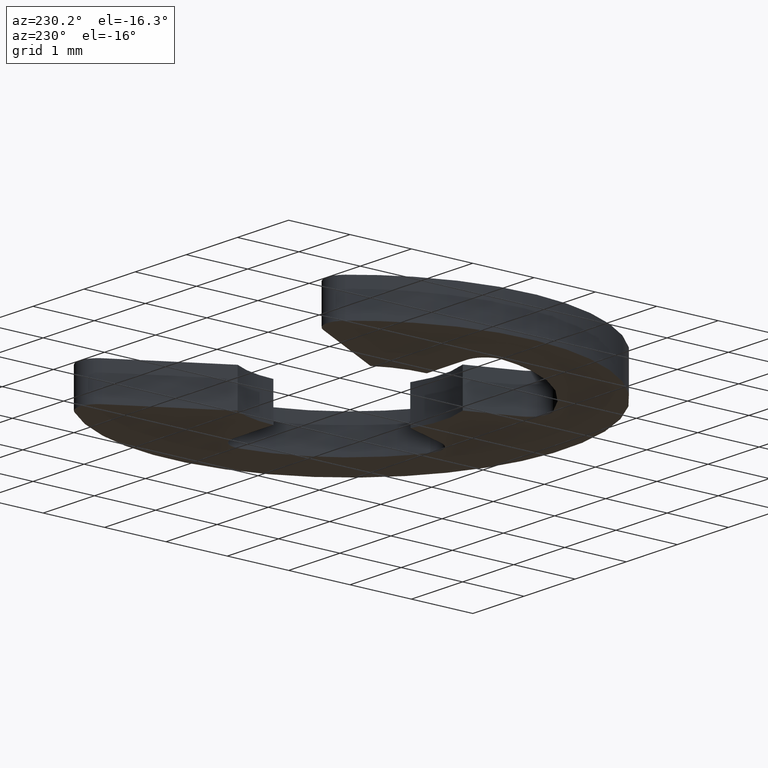
[diagram: clean part render]
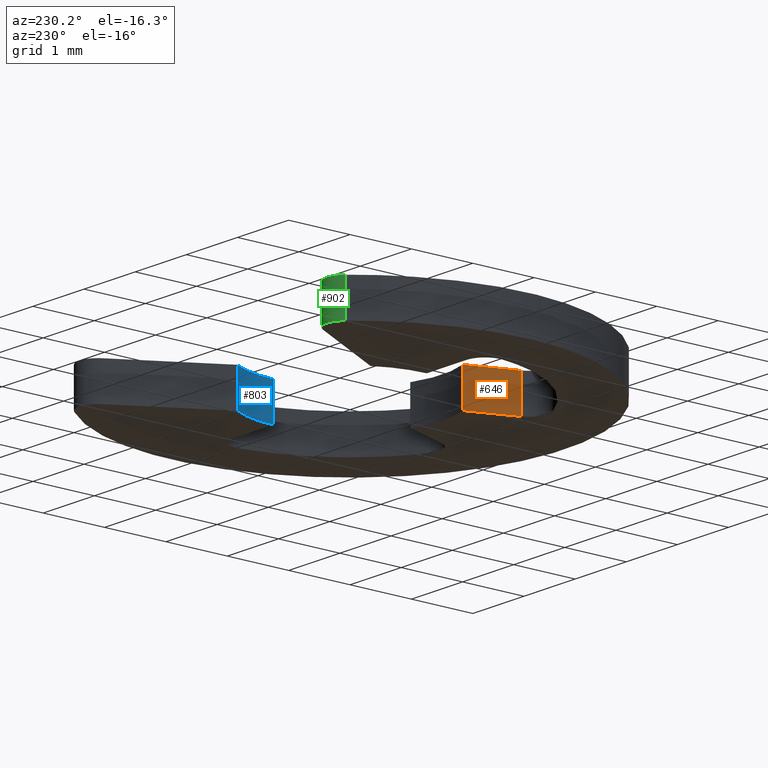
[diagram: same view with three faces highlighted in distinct colors, each labeled with its STEP entity id]
A machine part, auxiliary view with three faces highlighted in distinct colors.
Their STEP definitions:

[orange] entity #646 — the highlighted face is a freeform B-spline surface patch.
#105=CARTESIAN_POINT('',(-0.779926000000000,-2.142830000000105,0.0));
#106=VERTEX_POINT('',#105);
#122=CARTESIAN_POINT('',(-0.513031518846331,-1.409538456612740,0.0));
#123=VERTEX_POINT('',#122);
#124=CARTESIAN_POINT('',(-0.513031518846331,-1.409538456612740,0.0));
#125=CARTESIAN_POINT('',(-0.779926000000000,-2.142830000000105,0.0));
#126=QUASI_UNIFORM_CURVE('',1,(#124,#125),.UNSPECIFIED.,.F.,.U.);
#127=EDGE_CURVE('',#123,#106,#126,.T.);
#457=CARTESIAN_POINT('',(-0.513031518846331,-1.409538456612740,0.599990999999855));
#458=VERTEX_POINT('',#457);
#472=CARTESIAN_POINT('',(-0.779926000000000,-2.142830000000105,0.599990999999855));
#473=VERTEX_POINT('',#472);
#474=CARTESIAN_POINT('',(-0.513031518846331,-1.409538456612740,0.599990999999855));
#475=CARTESIAN_POINT('',(-0.779926000000000,-2.142830000000105,0.599990999999855));
#476=QUASI_UNIFORM_CURVE('',1,(#474,#475),.UNSPECIFIED.,.F.,.U.);
#477=EDGE_CURVE('',#458,#473,#476,.T.);
#623=CARTESIAN_POINT('',(-0.779926000000000,-2.142830000000105,0.599990999999855));
#624=CARTESIAN_POINT('',(-0.779926000000000,-2.142830000000105,0.0));
#625=QUASI_UNIFORM_CURVE('',1,(#623,#624),.UNSPECIFIED.,.F.,.U.);
#626=EDGE_CURVE('',#473,#106,#625,.T.);
#631=CARTESIAN_POINT('',(-0.793257374394974,-2.179457800676265,-0.029969549287094));
#632=CARTESIAN_POINT('',(-0.499699490181284,-1.372910827248603,-0.029969549287094));
#633=CARTESIAN_POINT('',(-0.793257374394974,-2.179457800676265,0.629960565379962));
#634=CARTESIAN_POINT('',(-0.499699490181284,-1.372910827248603,0.629960565379962));
#635=B_SPLINE_SURFACE_WITH_KNOTS('',1,1,((#631,#633),(#632,#634)),.UNSPECIFIED.,.F.,.F.,.U.,(2,2),(2,2),(0.041708447444066,0.958291619611159),(0.041708334948495,0.958291687403247),.UNSPECIFIED.);
#636=ORIENTED_EDGE('',*,*,#127,.T.);
#637=ORIENTED_EDGE('',*,*,#626,.F.);
#638=ORIENTED_EDGE('',*,*,#477,.F.);
#639=CARTESIAN_POINT('',(-0.513031518846331,-1.409538456612740,0.599990999999855));
#640=CARTESIAN_POINT('',(-0.513031518846331,-1.409538456612740,0.0));
#641=QUASI_UNIFORM_CURVE('',1,(#639,#640),.UNSPECIFIED.,.F.,.U.);
#642=EDGE_CURVE('',#458,#123,#641,.T.);
#643=ORIENTED_EDGE('',*,*,#642,.T.);
#644=EDGE_LOOP('',(#636,#637,#638,#643));
#645=FACE_OUTER_BOUND('',#644,.T.);
#646=ADVANCED_FACE('',(#645),#635,.F.);

[blue] entity #803 — the highlighted face is a freeform B-spline surface patch.
#200=CARTESIAN_POINT('',(1.500000000000000,3.673819E-016,0.0));
#201=VERTEX_POINT('',#200);
#207=CARTESIAN_POINT('',(1.299999000000000,0.748328999999899,0.0));
#208=VERTEX_POINT('',#207);
#209=CARTESIAN_POINT('',(1.299999000000000,0.748328999999899,0.0));
#210=CARTESIAN_POINT('',(1.499999088878164,0.400890455451811,0.0));
#211=CARTESIAN_POINT('',(1.500000000000000,3.673819E-016,0.0));
#219=(BOUNDED_CURVE()B_SPLINE_CURVE(2,(#209,#210,#211),.UNSPECIFIED.,.F.,.U.)CURVE()GEOMETRIC_REPRESENTATION_ITEM()QUASI_UNIFORM_CURVE()RATIONAL_B_SPLINE_CURVE((1.0,0.966091924929796,1.0))REPRESENTATION_ITEM(''));
#220=EDGE_CURVE('',#208,#201,#219,.T.);
#372=CARTESIAN_POINT('',(1.299999000000000,0.748328999999899,0.599990999999855));
#373=VERTEX_POINT('',#372);
#379=CARTESIAN_POINT('',(1.500000000000000,3.673819E-016,0.599990999999855));
#380=VERTEX_POINT('',#379);
#381=CARTESIAN_POINT('',(1.299999000000000,0.748328999999899,0.599990999999855));
#382=CARTESIAN_POINT('',(1.499999088878164,0.400890455451811,0.599990999999855));
#383=CARTESIAN_POINT('',(1.500000000000000,3.673819E-016,0.599990999999855));
#391=(BOUNDED_CURVE()B_SPLINE_CURVE(2,(#381,#382,#383),.UNSPECIFIED.,.F.,.U.)CURVE()GEOMETRIC_REPRESENTATION_ITEM()QUASI_UNIFORM_CURVE()RATIONAL_B_SPLINE_CURVE((1.0,0.966091924929796,1.0))REPRESENTATION_ITEM(''));
#392=EDGE_CURVE('',#373,#380,#391,.T.);
#771=CARTESIAN_POINT('',(1.500000000000000,3.673819E-016,0.599990999999855));
#772=CARTESIAN_POINT('',(1.500000000000000,3.673819E-016,0.0));
#773=QUASI_UNIFORM_CURVE('',1,(#771,#772),.UNSPECIFIED.,.F.,.U.);
#774=EDGE_CURVE('',#380,#201,#773,.T.);
#779=CARTESIAN_POINT('',(1.499506252933441,-0.038483729204833,0.614990774999852));
#780=CARTESIAN_POINT('',(1.499506252933441,-0.038483729204833,-0.015374769374996));
#781=CARTESIAN_POINT('',(1.510860737100011,0.403940130395196,0.614990774999851));
#782=CARTESIAN_POINT('',(1.510860737100011,0.403940130395196,-0.015374769374996));
#783=CARTESIAN_POINT('',(1.280232426513843,0.781668045977624,0.614990774999852));
#784=CARTESIAN_POINT('',(1.280232426513843,0.781668045977624,-0.015374769374996));
#792=(BOUNDED_SURFACE()B_SPLINE_SURFACE(1,2,((#779,#781,#783),(#780,#782,#784)),.UNSPECIFIED.,.F.,.F.,.U.)B_SPLINE_SURFACE_WITH_KNOTS((2,2),(3,3),(0.0,1.0),(0.002922328978404,0.915064131051675),.UNSPECIFIED.)GEOMETRIC_REPRESENTATION_ITEM()RATIONAL_B_SPLINE_SURFACE(((0.999714778033884,0.955332305995588,0.992392051915457),(0.999714778033884,0.955332305995588,0.992392051915457)))REPRESENTATION_ITEM('')SURFACE());
#793=ORIENTED_EDGE('',*,*,#220,.T.);
#794=ORIENTED_EDGE('',*,*,#774,.F.);
#795=ORIENTED_EDGE('',*,*,#392,.F.);
#796=CARTESIAN_POINT('',(1.299999000000000,0.748328999999899,0.599990999999855));
#797=CARTESIAN_POINT('',(1.299999000000000,0.748328999999899,0.0));
#798=QUASI_UNIFORM_CURVE('',1,(#796,#797),.UNSPECIFIED.,.F.,.U.);
#799=EDGE_CURVE('',#373,#208,#798,.T.);
#800=ORIENTED_EDGE('',*,*,#799,.T.);
#801=EDGE_LOOP('',(#793,#794,#795,#800));
#802=FACE_OUTER_BOUND('',#801,.T.);
#803=ADVANCED_FACE('',(#802),#792,.F.);

[green] entity #902 — the highlighted face is a freeform B-spline surface patch.
#246=CARTESIAN_POINT('',(-2.648951083941810,2.287587846375195,0.0));
#247=VERTEX_POINT('',#246);
#265=CARTESIAN_POINT('',(-2.162090000000000,2.241507999999895,0.0));
#266=VERTEX_POINT('',#265);
#267=CARTESIAN_POINT('',(-2.648951083941811,2.287587846375196,0.0));
#268=CARTESIAN_POINT('',(-2.547761402684595,2.404762151298508,0.0));
#269=CARTESIAN_POINT('',(-2.393630421255934,2.390174146258859,0.0));
#270=CARTESIAN_POINT('',(-2.239499439827274,2.375586141219209,0.0));
#271=CARTESIAN_POINT('',(-2.162090000000000,2.241507999999895,0.0));
#279=(BOUNDED_CURVE()B_SPLINE_CURVE(2,(#267,#268,#269,#270,#271),.UNSPECIFIED.,.F.,.U.)B_SPLINE_CURVE_WITH_KNOTS((3,2,3),(0.0,0.500000000000000,1.0),.UNSPECIFIED.)CURVE()GEOMETRIC_REPRESENTATION_ITEM()RATIONAL_B_SPLINE_CURVE((1.0,0.888643489135460,1.0,0.888643489135460,1.0))REPRESENTATION_ITEM(''));
#280=EDGE_CURVE('',#247,#266,#279,.T.);
#312=CARTESIAN_POINT('',(-2.162090000000000,2.241507999999895,0.599990999999855));
#313=VERTEX_POINT('',#312);
#319=CARTESIAN_POINT('',(-2.648951083941810,2.287587846375195,0.599990999999855));
#320=VERTEX_POINT('',#319);
#321=CARTESIAN_POINT('',(-2.648951083941811,2.287587846375196,0.599990999999855));
#322=CARTESIAN_POINT('',(-2.547761402684595,2.404762151298508,0.599990999999855));
#323=CARTESIAN_POINT('',(-2.393630421255934,2.390174146258859,0.599990999999855));
#324=CARTESIAN_POINT('',(-2.239499439827274,2.375586141219209,0.599990999999855));
#325=CARTESIAN_POINT('',(-2.162090000000000,2.241507999999895,0.599990999999855));
#333=(BOUNDED_CURVE()B_SPLINE_CURVE(2,(#321,#322,#323,#324,#325),.UNSPECIFIED.,.F.,.U.)B_SPLINE_CURVE_WITH_KNOTS((3,2,3),(0.0,0.500000000000000,1.0),.UNSPECIFIED.)CURVE()GEOMETRIC_REPRESENTATION_ITEM()RATIONAL_B_SPLINE_CURVE((1.0,0.888643489135460,1.0,0.888643489135460,1.0))REPRESENTATION_ITEM(''));
#334=EDGE_CURVE('',#320,#313,#333,.T.);
#870=CARTESIAN_POINT('',(-2.648951083941810,2.287587846375195,0.599990999999855));
#871=CARTESIAN_POINT('',(-2.648951083941810,2.287587846375195,0.0));
#872=QUASI_UNIFORM_CURVE('',1,(#870,#871),.UNSPECIFIED.,.F.,.U.);
#873=EDGE_CURVE('',#320,#247,#872,.T.);
#878=CARTESIAN_POINT('',(-2.158252510762985,2.234655614958462,0.614990774999852));
#879=CARTESIAN_POINT('',(-2.158252510762985,2.234655614958462,-0.015374769374996));
#880=CARTESIAN_POINT('',(-2.378679140114794,2.640634272874285,0.614990774999851));
#881=CARTESIAN_POINT('',(-2.378679140114794,2.640634272874285,-0.015374769374996));
#882=CARTESIAN_POINT('',(-2.659903511686564,2.274138130405371,0.614990774999852));
#883=CARTESIAN_POINT('',(-2.659903511686564,2.274138130405371,-0.015374769374996));
#891=(BOUNDED_SURFACE()B_SPLINE_SURFACE(1,2,((#878,#880,#882),(#879,#881,#883)),.UNSPECIFIED.,.F.,.F.,.U.)GEOMETRIC_REPRESENTATION_ITEM()QUASI_UNIFORM_SURFACE()RATIONAL_B_SPLINE_SURFACE(((1.0,0.544639035015027,1.0),(1.0,0.544639035015027,1.0)))REPRESENTATION_ITEM('')SURFACE());
#892=ORIENTED_EDGE('',*,*,#280,.F.);
#893=ORIENTED_EDGE('',*,*,#873,.F.);
#894=ORIENTED_EDGE('',*,*,#334,.T.);
#895=CARTESIAN_POINT('',(-2.162090000000000,2.241507999999895,0.599990999999855));
#896=CARTESIAN_POINT('',(-2.162090000000000,2.241507999999895,0.0));
#897=QUASI_UNIFORM_CURVE('',1,(#895,#896),.UNSPECIFIED.,.F.,.U.);
#898=EDGE_CURVE('',#313,#266,#897,.T.);
#899=ORIENTED_EDGE('',*,*,#898,.T.);
#900=EDGE_LOOP('',(#892,#893,#894,#899));
#901=FACE_OUTER_BOUND('',#900,.T.);
#902=ADVANCED_FACE('',(#901),#891,.T.);